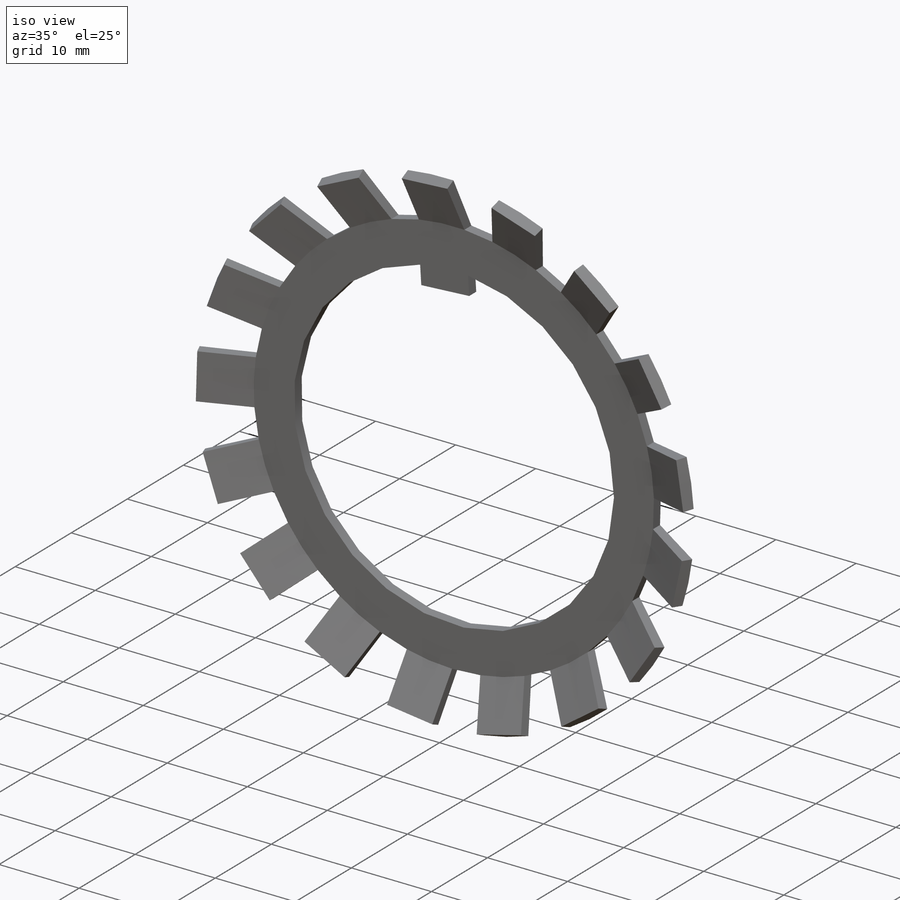
[diagram: iso view]
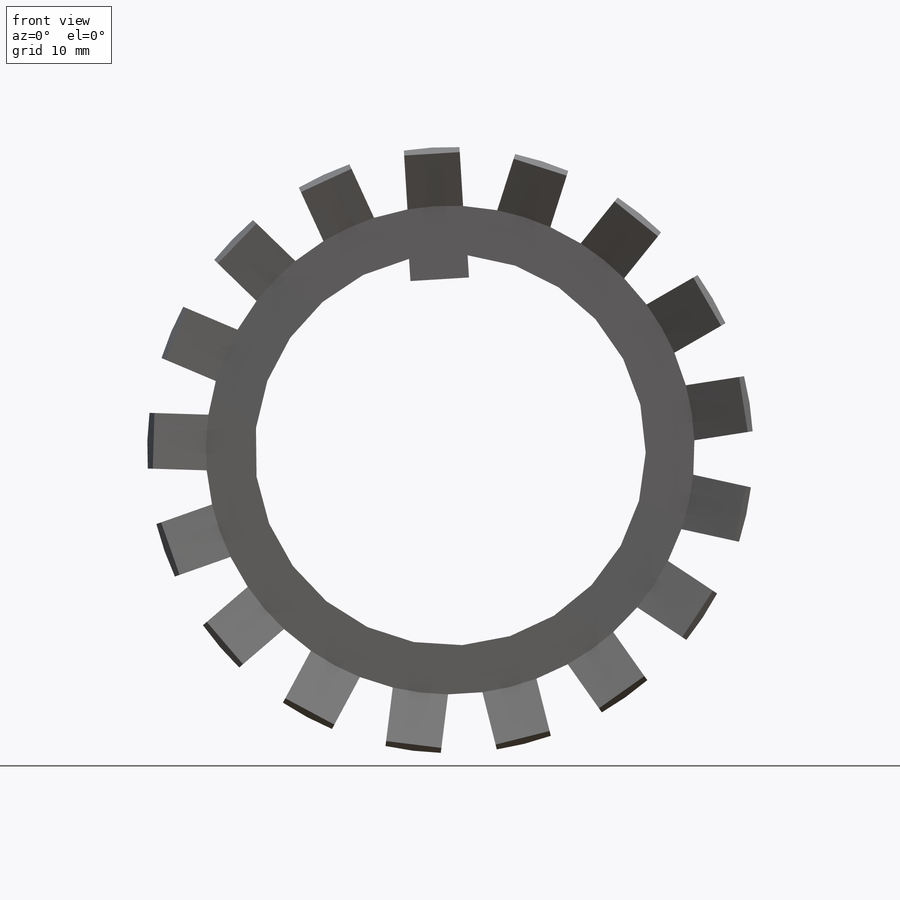
[diagram: front view]
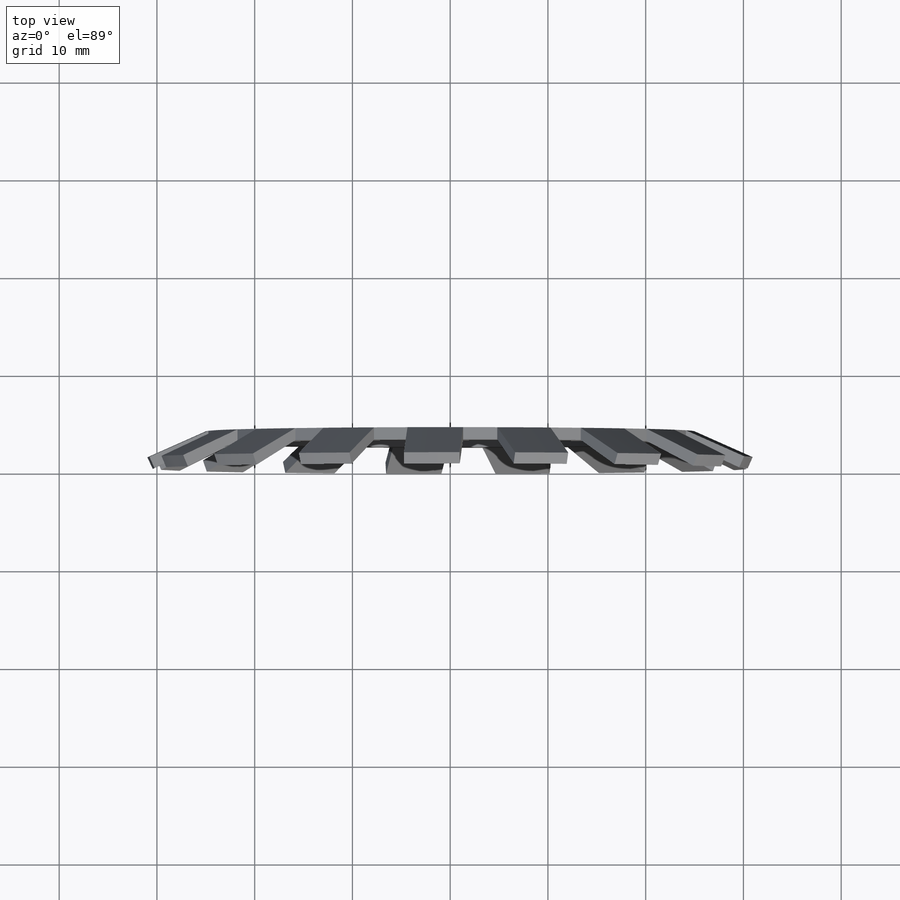
[diagram: top view]
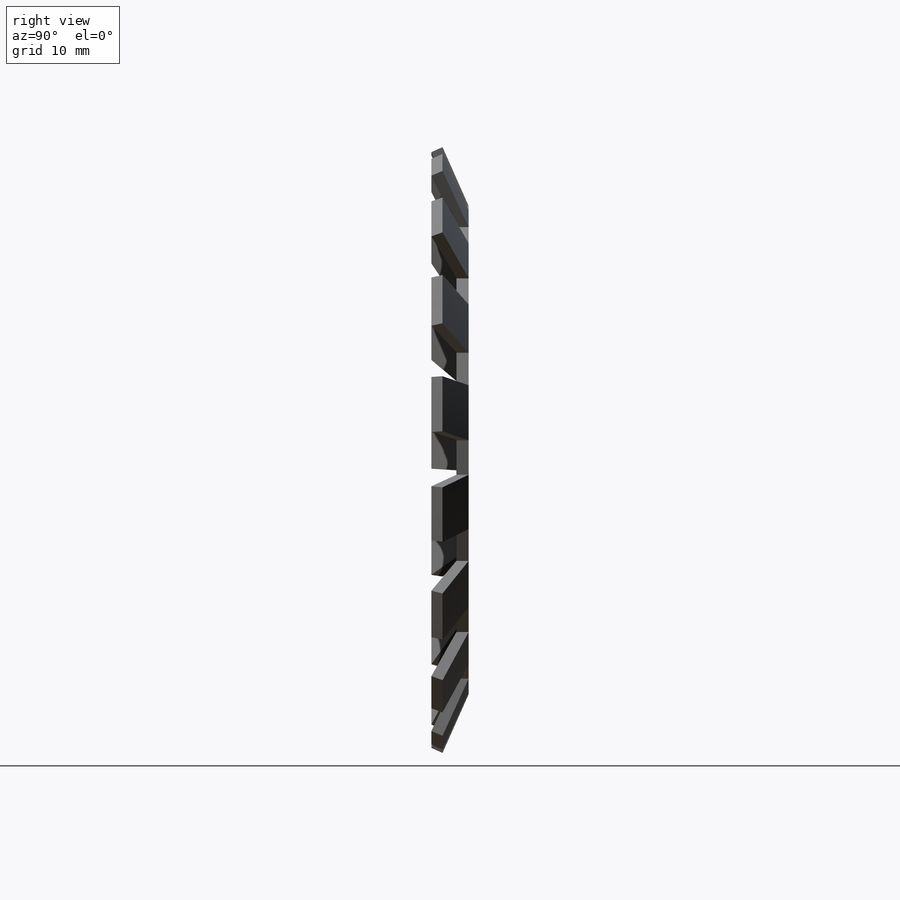
[diagram: right view]
SOLIDWORKS PART (.sldprt)
format: sldprt  version: not decoded by parser v0  size: 353,280 bytes
history: native  units: mm
features: revolve x4, sketch x3, material x1, cut_extrude x1, pattern_circular x1, extrude x1 (+15 scaffold rows collapsed)
feature tree (26):
  scaffold x15  (default folders/planes/origin — collapsed)
  material  "材质 <未指定>"
  sketch  "Sketch1"  dims[c1.D3=20.0mm c1.D4=20.0mm c1.R=10.0mm c1.垫圈外径D=12.5mm c1.垫圈内径d=8.0mm c1.垫圈高h=3.0mm c1.垫圈厚h=2.6mm c1.D2=~1.51865mm c1.半张角=60.0deg c2.D3=~11.026856mm c2.D1=50.0mm c2.D2=1.0mm c2.S1=1.25mm c2.D4=~5.914701mm c2.Angle=65.0deg c2.D=62.0mm c2.S=1.25mm c3.D2=~2.876255mm c4.D2=~23.869428deg]
  revolve  "Base-Extrude"  Angle=360deg
  sketch  "Sketch2"  dims[c1.d=40.5mm c1.D1=40.0mm c1.b1=5.7mm c1.b2=2.85mm c1.a=37.0mm c1.D6=5.7mm c1.D7=2.85mm c1.D8=~4.583656mm c2.D8=30.0deg c2.D9=~4.583656mm c3.D9=30.0deg c4.D9=~15.489342mm c5.D9=15.0deg c5.b=5.7mm c5.D11=2.85mm c5.D12=150.0deg c5.D2=~4.583656mm c6.D2=30.0deg c6.D1=0.0mm]
  cut_extrude  "Cut-Extrude"  [1 undecoded]
  revolve  "ConfigurationName"  CopiedFlag=1  [1 undecoded]
  revolve  "PartNumberID"  [1 undecoded]
  revolve  "ConfigurationName"  CopiedFlag=0  [1 undecoded]
  pattern_circular  "阵列(圆周)4"  Count=17 Angle=21.176471deg
  sketch  "草图2"  dims[D3=37.5mm D1=3.0mm D2=3.0mm]
  extrude  "凸台-拉伸1"  [1 undecoded]
decode coverage: 7 of 10 modeling features carry decoded parameters
note: ~ marks probable driven/reference dimensions
note: 5 parameter values undecoded
summary: no parameter record found for 5 features
note: suppression state not decoded; provenance and decode notes live in map.json
